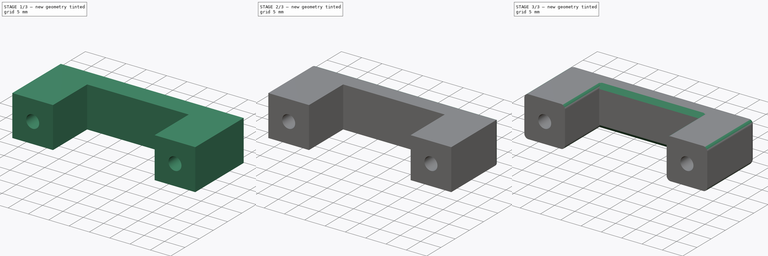
[diagram: build sequence overview — one tinted view per stage of 3, left to right]
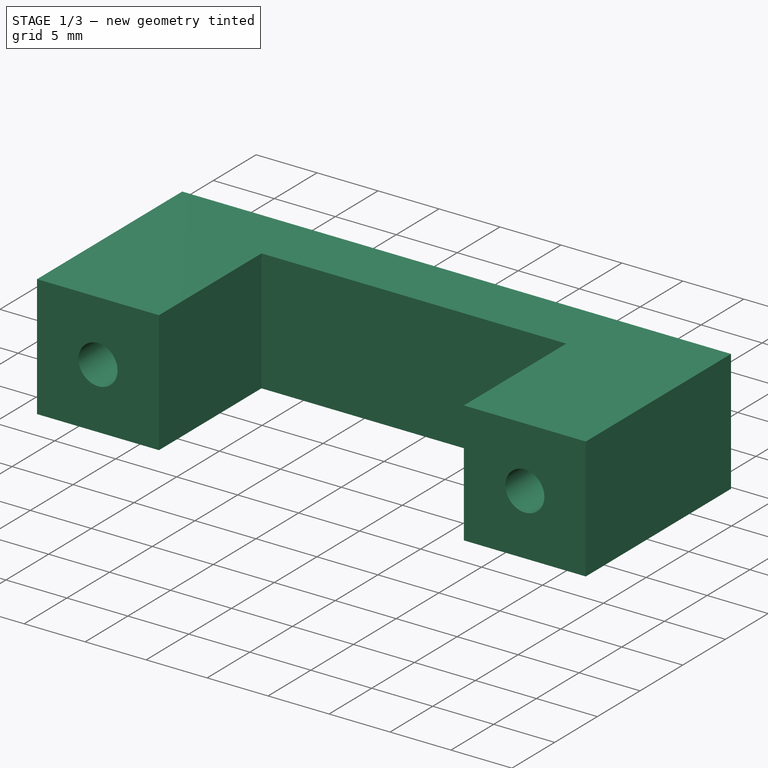
[diagram: stage 1 of 3 — iso view after this stage's code; geometry added in this stage tinted green]
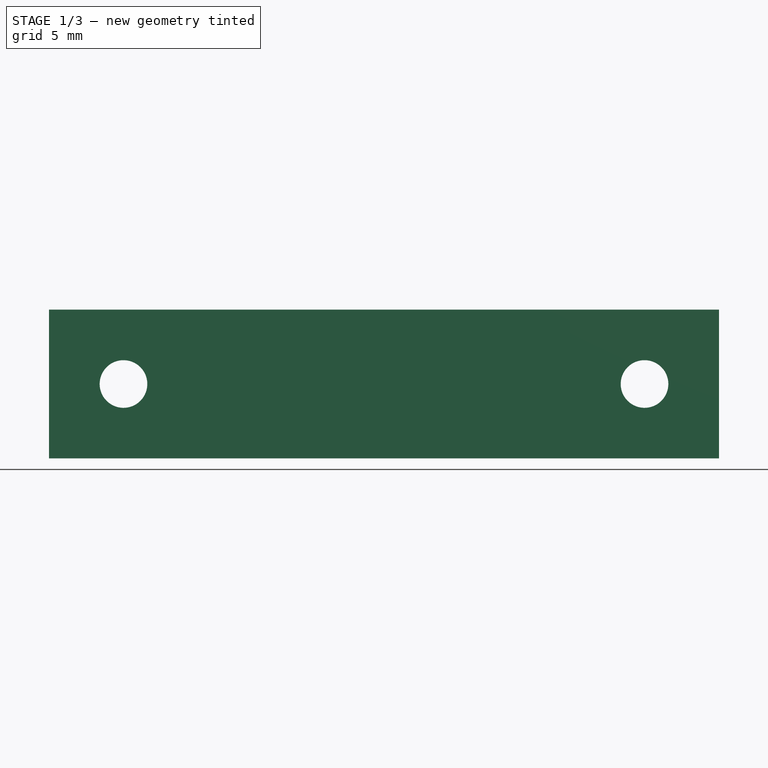
[diagram: stage 1 of 3 — front view after this stage's code; geometry added in this stage tinted green]
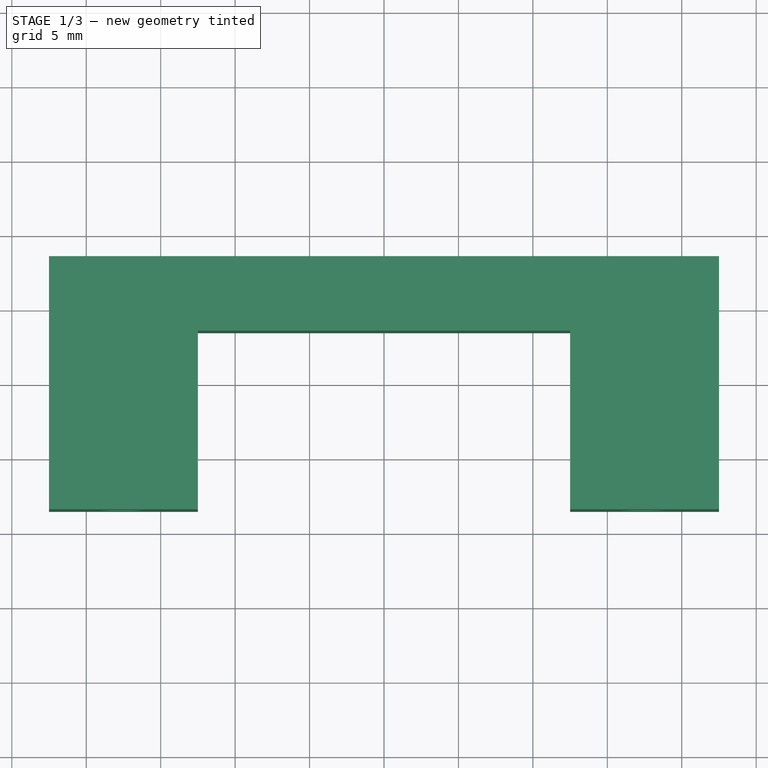
[diagram: stage 1 of 3 — top view after this stage's code; geometry added in this stage tinted green]
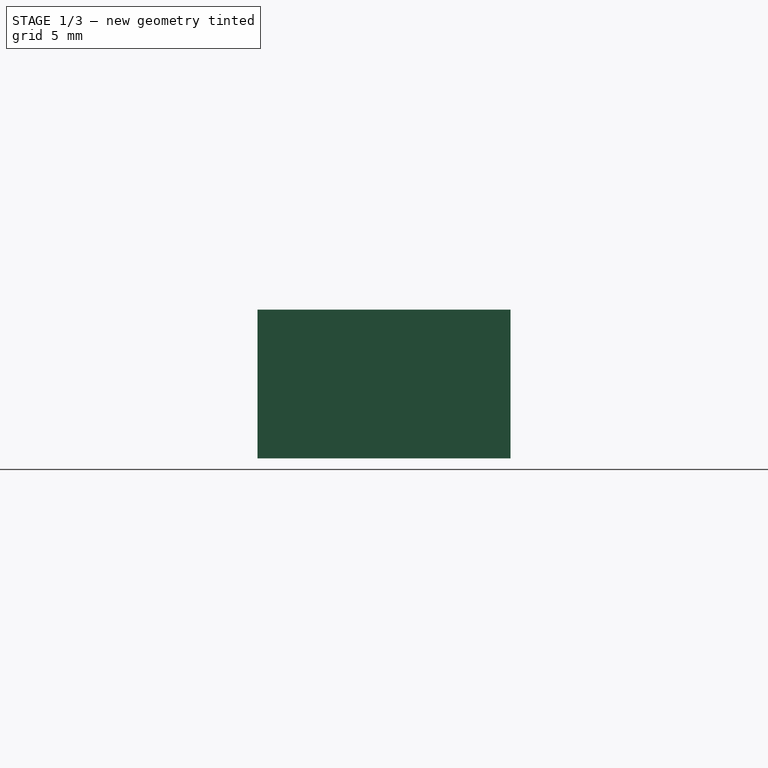
[diagram: stage 1 of 3 — right view after this stage's code; geometry added in this stage tinted green]
FCSTD DOCUMENT  (FreeCAD 0.21R33771 (Git))
Label: puxador
License: All rights reserved
LicenseURL: https://en.wikipedia.org/wiki/All_rights_reserved
objects: Sketcher::SketchObject×3, PartDesign::Pocket×2, PartDesign::Fillet×2, PartDesign::Pad×1, PartDesign::Chamfer×1, PartDesign::Body×1
note: 16 computed .brp shape members not serialized (recipe doc carries the construction recipe); baked Part::Feature solids carry a one-line shape summary decoded from their .brp

FEATURE [Sketcher::SketchObject] Sketch
  FullyConstrained = true
  MapMode = 5
  Support = -> [XY_Plane]
  sketch-geometry (8):
    g0: LineSegment StartX=-12.5 StartY=-8.5 StartZ=0 EndX=-12.5 EndY=3.5 EndZ=0
    g1: LineSegment StartX=-12.5 StartY=3.5 StartZ=0 EndX=12.5 EndY=3.5 EndZ=0
    g2: LineSegment StartX=12.5 StartY=3.5 StartZ=0 EndX=12.5 EndY=-8.5 EndZ=0
    g3: LineSegment StartX=12.5 StartY=-8.5 StartZ=0 EndX=22.5 EndY=-8.5 EndZ=0
    g4: LineSegment StartX=22.5 StartY=-8.5 StartZ=0 EndX=22.5 EndY=8.5 EndZ=0
    g5: LineSegment StartX=22.5 StartY=8.5 StartZ=0 EndX=-22.5 EndY=8.5 EndZ=0
    g6: LineSegment StartX=-22.5 StartY=8.5 StartZ=0 EndX=-22.5 EndY=-8.5 EndZ=0
    g7: LineSegment StartX=-22.5 StartY=-8.5 StartZ=0 EndX=-12.5 EndY=-8.5 EndZ=0
  constraints (21):
    c: Coincident(g0,g1)
    c: Coincident(g1,g2)
    c: Coincident(g2,g3)
    c: Coincident(g3,g4)
    c: Vertical(g4)
    c: Coincident(g4,g5)
    c: Coincident(g5,g6)
    c: Coincident(g6,g7)
    c: Coincident(g7,g0)
    c: Symmetric(g0,g1,g-2)
    c: Symmetric(g5,g4,g-2)
    c: Symmetric(g5,g6,g-1)
    c: Horizontal(g7)
    c: Horizontal(g3)
    c: Vertical(g2)
    c: Vertical(g0)
    c: Horizontal(g2,g0)
    c: DistanceY(g6,g6) = 17
    c: DistanceX(g5,g5) = 45
    c: DistanceX(g7,g7) = 10
    c: DistanceY(g1,g4) = 5
FEATURE [PartDesign::Pad] Pad
  Direction = (0,0,1)
  Length = 10
  Length2 = 10
  Profile = -> Sketch
  ReferenceAxis = -> Sketch [N_Axis]
  Type = 0
FEATURE [Sketcher::SketchObject] Sketch001
  ExternalGeometry = -> [Pad]
  FullyConstrained = true
  MapMode = 5
  Placement = pos=(0,-8.5,0) rot=(1,0,0;1.5708rad)
  Support = -> [Pad]
  sketch-geometry (4):
    g0: Circle CenterX=-17.5 CenterY=5 CenterZ=0 NormalX=0 NormalY=0 NormalZ=1 AngleXU=0 Radius=1.6
    g1: Circle CenterX=17.5 CenterY=5 CenterZ=0 NormalX=0 NormalY=0 NormalZ=1 AngleXU=0 Radius=1.6
    g2: LineSegment StartX=-17.5 StartY=5 StartZ=0 EndX=17.5 EndY=5 EndZ=0
    g3: Circle CenterX=-17.5 CenterY=5 CenterZ=0 NormalX=0 NormalY=0 NormalZ=1 AngleXU=0 Radius=5
  constraints (9):
    c: Symmetric(g0,g1,g-2)
    c: Coincident(g0,g2)
    c: Coincident(g1,g2)
    c: Equal(g0,g1)
    c: Diameter(g1) = 3.2
    c: Symmetric(g-4,g-8,g2)
    c: Coincident(g3,g0)
    c: Tangent(g3,g-3)
    c: Tangent(g3,g-4)
FEATURE [PartDesign::Pocket] Pocket
  BaseFeature = -> Pad
  Direction = (0,1,-2e-16)
  Length = 5
  Length2 = 5
  Profile = -> Sketch001
  ReferenceAxis = -> Sketch001 [N_Axis]
  Type = 1
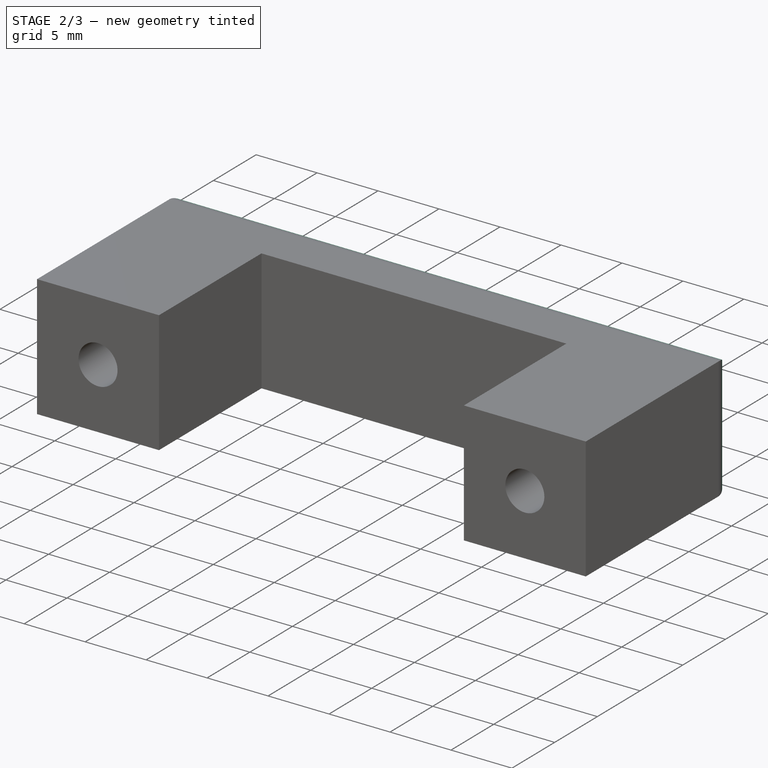
[diagram: stage 2 of 3 — iso view after this stage's code; geometry added in this stage tinted green]
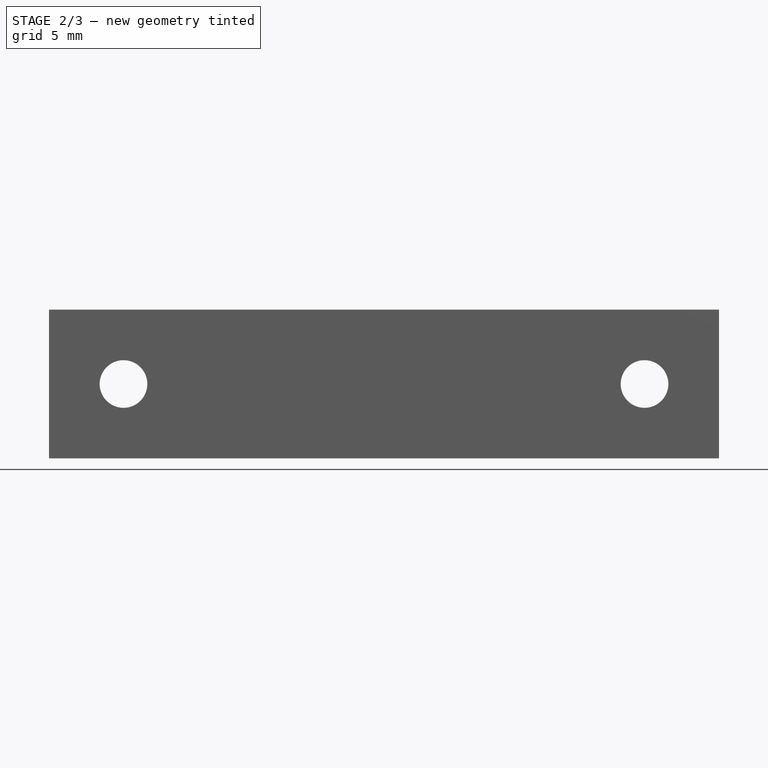
[diagram: stage 2 of 3 — front view after this stage's code; geometry added in this stage tinted green]
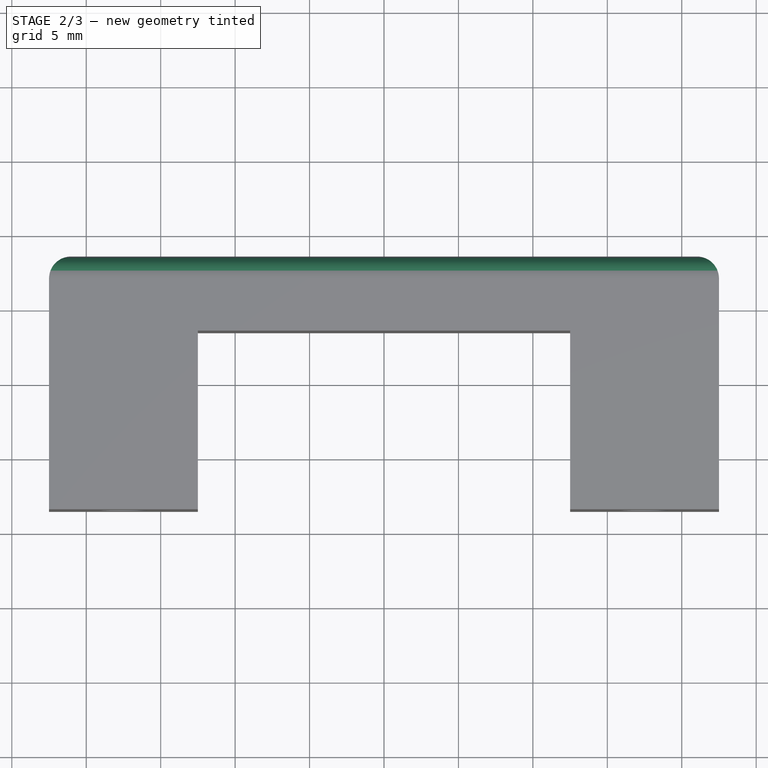
[diagram: stage 2 of 3 — top view after this stage's code; geometry added in this stage tinted green]
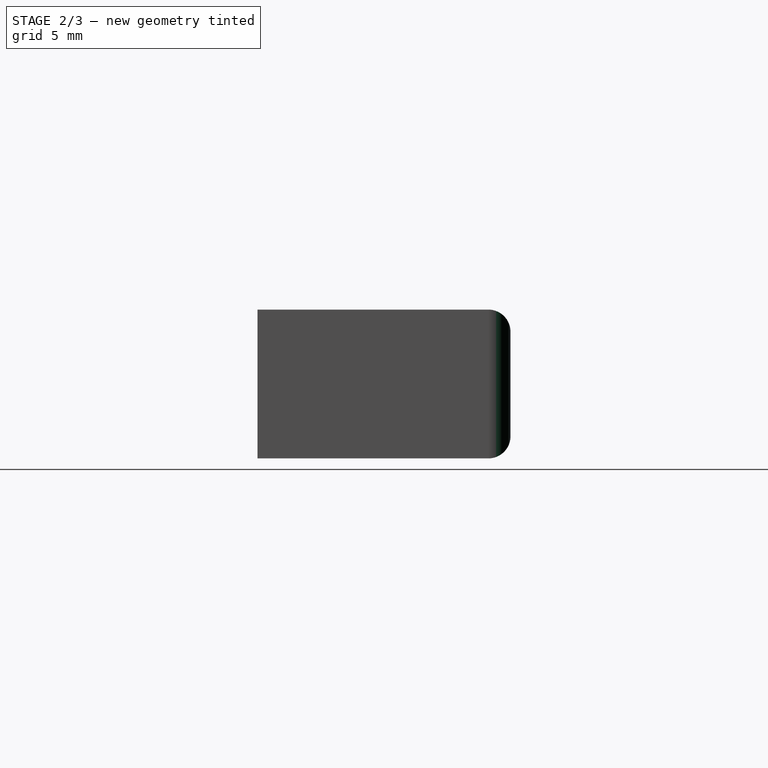
[diagram: stage 2 of 3 — right view after this stage's code; geometry added in this stage tinted green]
FEATURE [Sketcher::SketchObject] Sketch002
  ExternalGeometry = -> [Pocket]
  FullyConstrained = true
  MapMode = 5
  Placement = pos=(0,8.5,0) rot=(0,0.707107,0.707107;3.14159rad)
  Support = -> [Pocket]
  sketch-geometry (14):
    g0: LineSegment StartX=-17.5 StartY=8.23316 StartZ=0 EndX=-20.3 EndY=6.61658 EndZ=0
    g1: LineSegment StartX=-20.3 StartY=6.61658 StartZ=0 EndX=-20.3 EndY=3.38342 EndZ=0
    g2: LineSegment StartX=-20.3 StartY=3.38342 StartZ=0 EndX=-17.5 EndY=1.76684 EndZ=0
    g3: LineSegment StartX=-17.5 StartY=1.76684 StartZ=0 EndX=-14.7 EndY=3.38342 EndZ=0
    g4: LineSegment StartX=-14.7 StartY=3.38342 StartZ=0 EndX=-14.7 EndY=6.61658 EndZ=0
    g5: LineSegment StartX=-14.7 StartY=6.61658 StartZ=0 EndX=-17.5 EndY=8.23316 EndZ=0
    g6: Circle CenterX=-17.5 CenterY=5 CenterZ=0 NormalX=0 NormalY=0 NormalZ=1 AngleXU=0 Radius=3.23316
    g7: LineSegment StartX=17.5 StartY=8.23316 StartZ=0 EndX=14.7 EndY=6.61658 EndZ=0
    g8: LineSegment StartX=14.7 StartY=6.61658 StartZ=0 EndX=14.7 EndY=3.38342 EndZ=0
    g9: LineSegment StartX=14.7 StartY=3.38342 StartZ=0 EndX=17.5 EndY=1.76684 EndZ=0
    g10: LineSegment StartX=17.5 StartY=1.76684 StartZ=0 EndX=20.3 EndY=3.38342 EndZ=0
    g11: LineSegment StartX=20.3 StartY=3.38342 StartZ=0 EndX=20.3 EndY=6.61658 EndZ=0
    g12: LineSegment StartX=20.3 StartY=6.61658 StartZ=0 EndX=17.5 EndY=8.23316 EndZ=0
    g13: Circle CenterX=17.5 CenterY=5 CenterZ=0 NormalX=0 NormalY=0 NormalZ=1 AngleXU=0 Radius=3.23316
  constraints (32):
    c: Coincident(g0,g1)
    c: Coincident(g1,g2)
    c: Coincident(g2,g3)
    c: Coincident(g3,g4)
    c: Coincident(g4,g5)
    c: Coincident(g5,g0)
    c: Equal(g0, g1-g5) x5
    c: PointOnObject(g0,g6)
    c: PointOnObject(g1,g6)
    c: PointOnObject(g2,g6)
    c: PointOnObject(g3,g6)
    c: PointOnObject(g4,g6)
    c: PointOnObject(g5,g6)
    c: Coincident(g6,g-3)
    c: Coincident(g7,g8)
    c: Coincident(g8,g9)
    c: Coincident(g9,g10)
    c: Coincident(g10,g11)
    c: Coincident(g11,g12)
    c: Coincident(g12,g7)
    c: Equal(g7, g8-g12) x5
    c: PointOnObject(g7,g13)
    c: PointOnObject(g8,g13)
    c: PointOnObject(g9,g13)
    c: PointOnObject(g10,g13)
    c: PointOnObject(g11,g13)
    c: PointOnObject(g12,g13)
    c: Coincident(g13,g-4)
    c: Vertical(g1)
    c: Vertical(g8)
    c: DistanceX(g0,g4) = 5.6
    c: Equal(g13,g6)
FEATURE [PartDesign::Pocket] Pocket001
  BaseFeature = -> Pocket
  Direction = (0,-1,2e-16)
  Length = 2.5
  Length2 = 5
  Profile = -> Sketch002
  ReferenceAxis = -> Sketch002 [N_Axis]
  Type = 0
FEATURE [PartDesign::Fillet] Fillet
  Base = -> Pocket001 [Edge15,Edge20,Edge22,Edge28]
  BaseFeature = -> Pocket001
  Radius = 1.5
  SupportTransform = false
  UseAllEdges = false
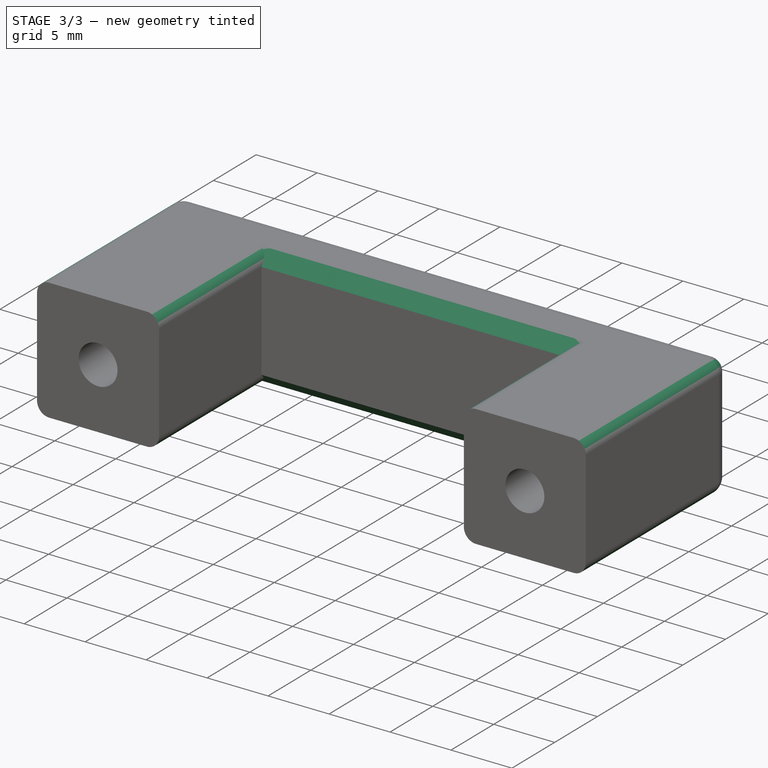
[diagram: stage 3 of 3 — iso view after this stage's code; geometry added in this stage tinted green]
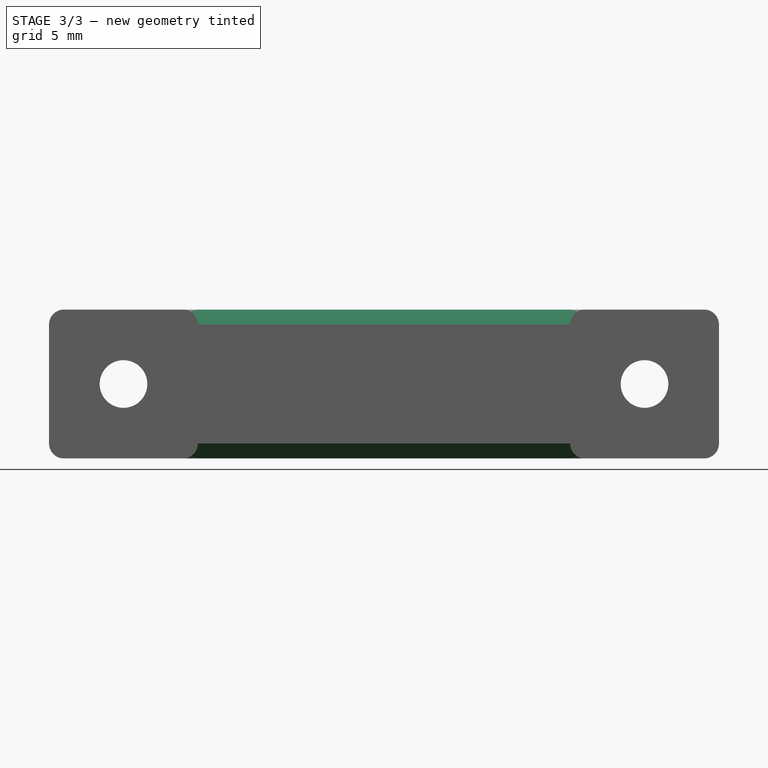
[diagram: stage 3 of 3 — front view after this stage's code; geometry added in this stage tinted green]
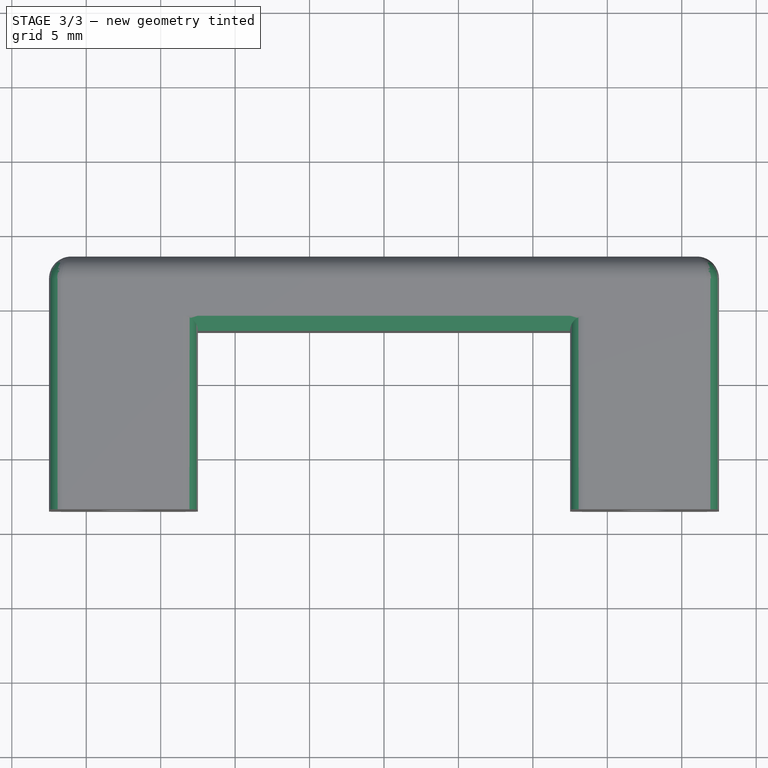
[diagram: stage 3 of 3 — top view after this stage's code; geometry added in this stage tinted green]
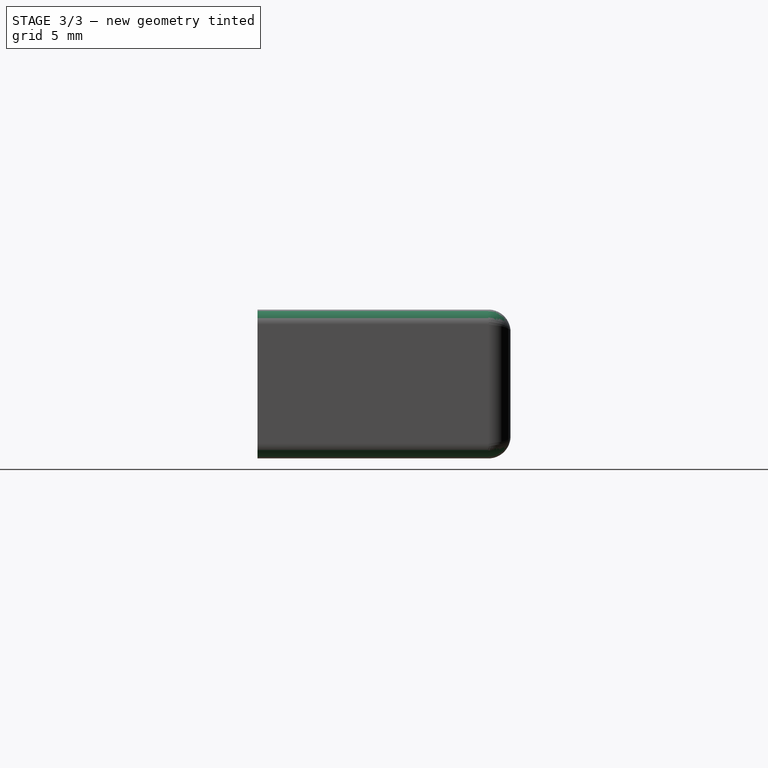
[diagram: stage 3 of 3 — right view after this stage's code; geometry added in this stage tinted green]
FEATURE [PartDesign::Fillet] Fillet001
  Base = -> Fillet [Edge8,Edge28,Edge4,Edge20,Edge22,Edge5,Edge1,Edge11]
  BaseFeature = -> Fillet
  Radius = 1
  SupportTransform = false
  UseAllEdges = false
FEATURE [PartDesign::Chamfer] Chamfer
  Angle = 45
  Base = -> Fillet001 [Edge10,Edge41]
  BaseFeature = -> Fillet001
  ChamferType = 0
  FlipDirection = false
  Size = 1
  Size2 = 1
  SupportTransform = false
  UseAllEdges = false
FEATURE [PartDesign::Body] Body
  Group = -> [Sketch,Pad,Sketch001,Pocket,Sketch002,Pocket001,Fillet,Fillet001,Chamfer]
  Origin = -> Origin
  Tip = -> Chamfer
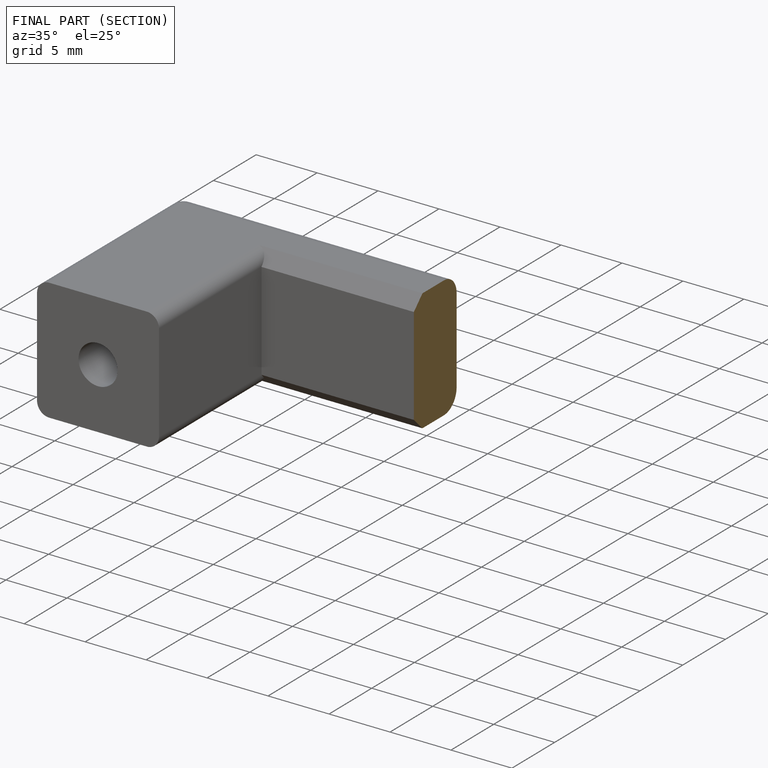
[diagram: finished part — half-section view (interior)]
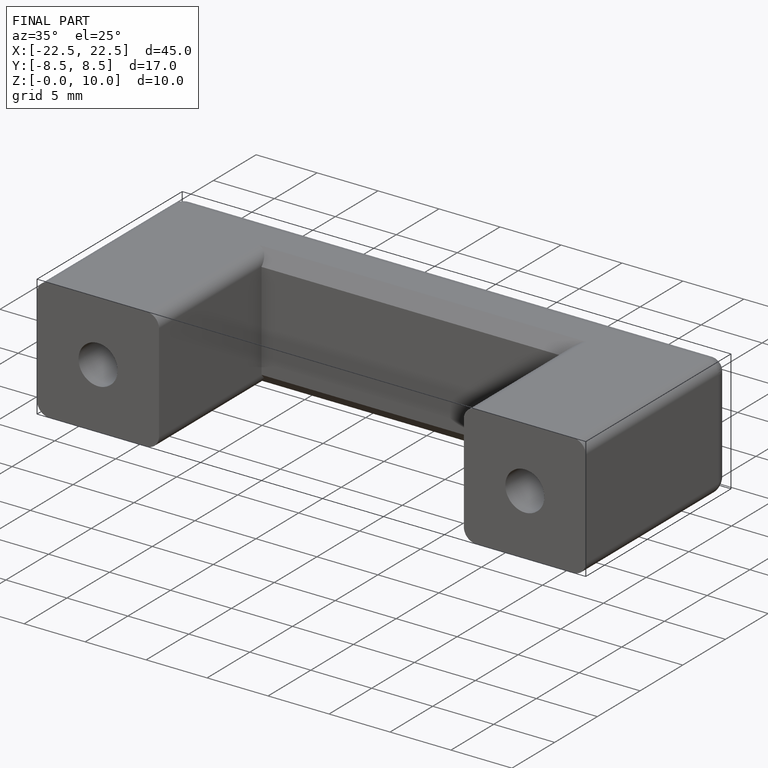
[diagram: finished part — iso view with bounding-box wireframe]
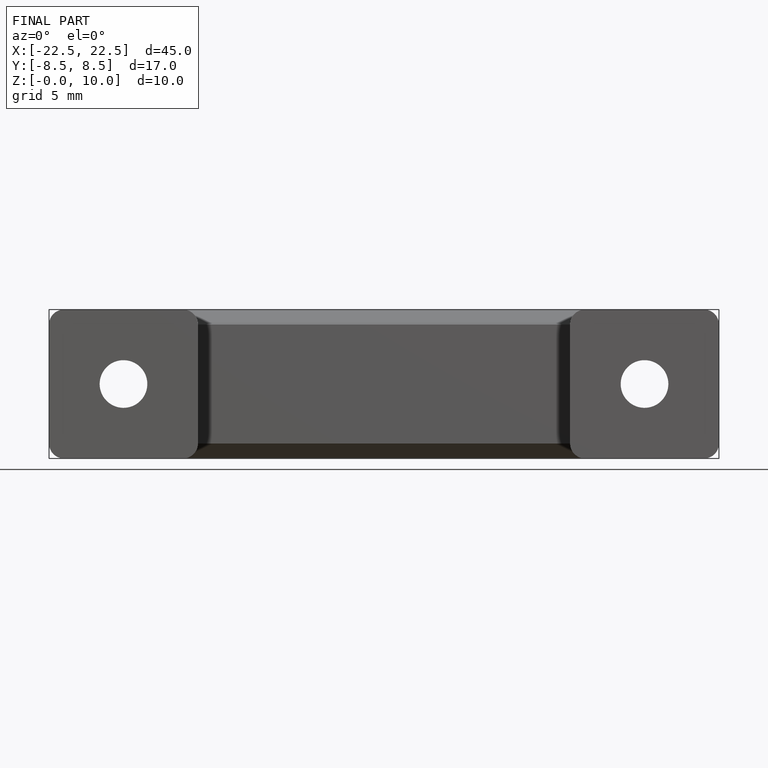
[diagram: finished part — front view with bounding-box wireframe]
